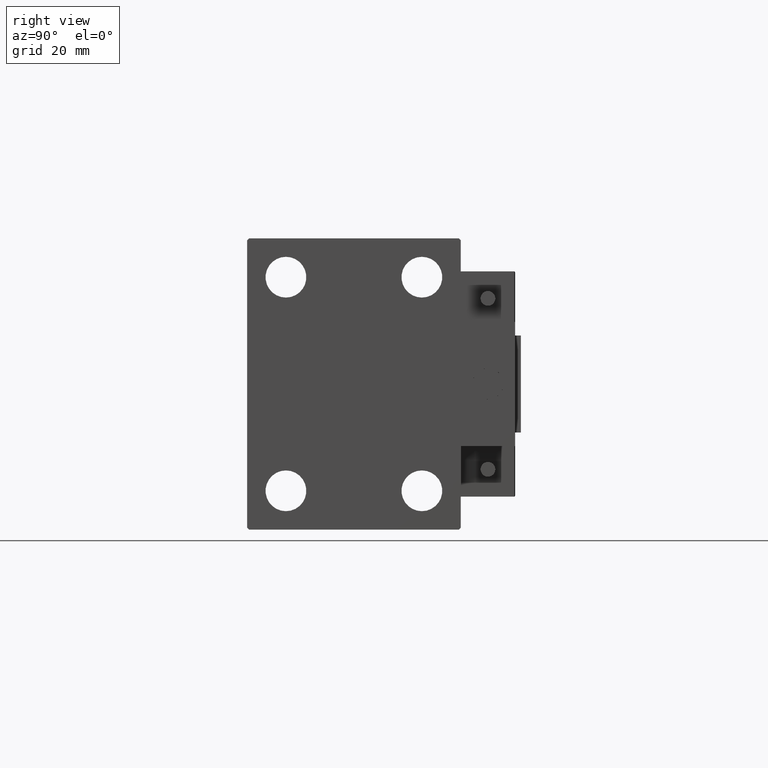
[diagram: clean part render]
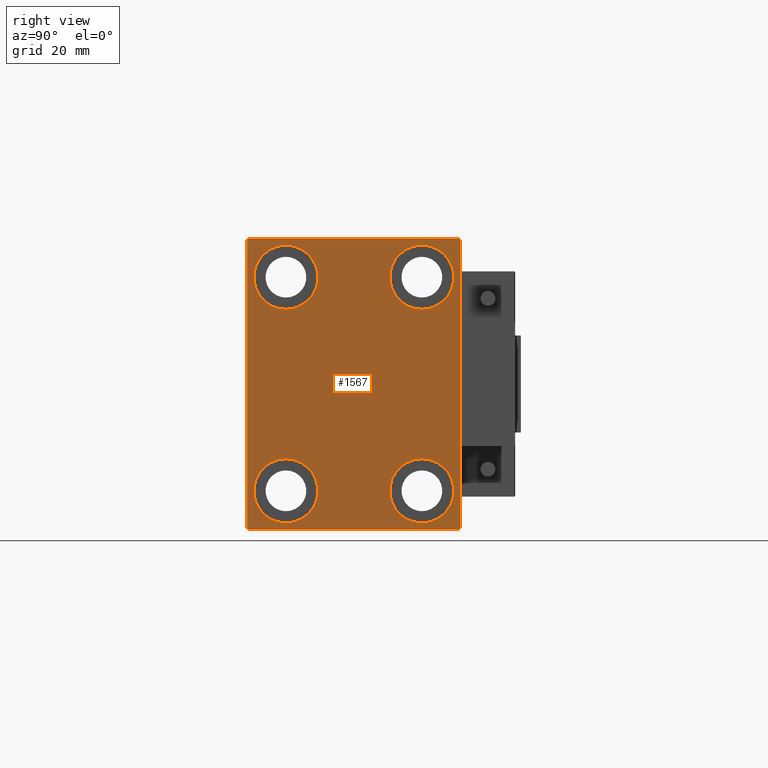
[diagram: same view with one face highlighted and labeled with its STEP entity id]
A machine part, right view. The second image highlights one B-rep face of the part: STEP entity #1567.
In plain terms, the highlighted planar face has unit normal (1, 0, 0).
Its self-contained STEP definition (entity closure, byte-faithful):
#19 = LINE ( 'NONE', #38722, #2837 ) ;
#499 = FACE_OUTER_BOUND ( 'NONE', #27328, .T. ) ;
#1173 = ORIENTED_EDGE ( 'NONE', *, *, #49385, .T. ) ;
#1546 = CARTESIAN_POINT ( 'NONE',  ( 80.00000000000000000, -27.00000000000001776, 37.50000000000000000 ) ) ;
#1567 = ADVANCED_FACE ( 'NONE', ( #27239, #7868, #11957, #46578, #499 ), #15533, .T. ) ;
#1791 = DIRECTION ( 'NONE',  ( -1.000000000000000000, -0.000000000000000000, -0.000000000000000000 ) ) ;
#1799 = LINE ( 'NONE', #40244, #48551 ) ;
#2435 = CARTESIAN_POINT ( 'NONE',  ( 80.00000000000000000, -17.50000000000000355, -19.25000000000000355 ) ) ;
#2484 = ORIENTED_EDGE ( 'NONE', *, *, #25147, .T. ) ;
#2837 = VECTOR ( 'NONE', #18627, 1000.000000000000114 ) ;
#2992 = VERTEX_POINT ( 'NONE', #23131 ) ;
#3217 = CARTESIAN_POINT ( 'NONE',  ( 80.00000000000000000, -27.50000000000000355, -37.50000000000000000 ) ) ;
#4027 = DIRECTION ( 'NONE',  ( 0.000000000000000000, 0.000000000000000000, 1.000000000000000000 ) ) ;
#4166 = CIRCLE ( 'NONE', #42373, 8.249999999999992895 ) ;
#5247 = VERTEX_POINT ( 'NONE', #39080 ) ;
#5468 = LINE ( 'NONE', #44436, #15142 ) ;
#5754 = DIRECTION ( 'NONE',  ( -0.000000000000000000, 0.7071067811865474617, -0.7071067811865474617 ) ) ;
#5809 = ORIENTED_EDGE ( 'NONE', *, *, #32079, .T. ) ;
#6461 = DIRECTION ( 'NONE',  ( 0.000000000000000000, 0.000000000000000000, 1.000000000000000000 ) ) ;
#7298 = ORIENTED_EDGE ( 'NONE', *, *, #23054, .T. ) ;
#7519 = ORIENTED_EDGE ( 'NONE', *, *, #17400, .T. ) ;
#7868 = FACE_BOUND ( 'NONE', #33453, .T. ) ;
#8366 = CARTESIAN_POINT ( 'NONE',  ( 80.00000000000000000, -17.49999999999999645, 27.49999999999999645 ) ) ;
#9028 = ORIENTED_EDGE ( 'NONE', *, *, #44832, .T. ) ;
#9425 = DIRECTION ( 'NONE',  ( 0.000000000000000000, 0.000000000000000000, -1.000000000000000000 ) ) ;
#9546 = DIRECTION ( 'NONE',  ( -0.000000000000000000, -0.7071067811865426878, 0.7071067811865524577 ) ) ;
#9614 = EDGE_CURVE ( 'NONE', #49757, #25144, #19, .T. ) ;
#9733 = DIRECTION ( 'NONE',  ( 0.000000000000000000, 0.000000000000000000, 1.000000000000000000 ) ) ;
#9812 = CARTESIAN_POINT ( 'NONE',  ( 80.00000000000000000, 27.50000000000000355, -37.00000000000000000 ) ) ;
#10056 = DIRECTION ( 'NONE',  ( 0.000000000000000000, -0.7071067811865474617, -0.7071067811865474617 ) ) ;
#10070 = CIRCLE ( 'NONE', #38547, 8.249999999999992895 ) ;
#11038 = CARTESIAN_POINT ( 'NONE',  ( 80.00000000000000000, 17.49999999999999645, -27.50000000000000355 ) ) ;
#11422 = EDGE_LOOP ( 'NONE', ( #26274, #44613 ) ) ;
#11957 = FACE_BOUND ( 'NONE', #30612, .T. ) ;
#12583 = DIRECTION ( 'NONE',  ( -1.000000000000000000, -0.000000000000000000, -0.000000000000000000 ) ) ;
#13087 = ORIENTED_EDGE ( 'NONE', *, *, #16233, .T. ) ;
#13097 = CARTESIAN_POINT ( 'NONE',  ( 80.00000000000000000, -17.49999999999999645, 19.25000000000000000 ) ) ;
#13170 = LINE ( 'NONE', #28220, #37859 ) ;
#13731 = AXIS2_PLACEMENT_3D ( 'NONE', #36913, #1791, #13749 ) ;
#13749 = DIRECTION ( 'NONE',  ( 0.000000000000000000, 0.000000000000000000, 1.000000000000000000 ) ) ;
#15142 = VECTOR ( 'NONE', #9546, 1000.000000000000000 ) ;
#15348 = CARTESIAN_POINT ( 'NONE',  ( 80.00000000000000000, -27.50000000000000355, 37.00000000000001421 ) ) ;
#15533 = PLANE ( 'NONE',  #49788 ) ;
#15707 = CARTESIAN_POINT ( 'NONE',  ( 80.00000000000000000, -17.50000000000000355, -27.50000000000000355 ) ) ;
#15773 = CARTESIAN_POINT ( 'NONE',  ( 80.00000000000000000, 17.49999999999999645, -35.75000000000000711 ) ) ;
#16233 = EDGE_CURVE ( 'NONE', #33075, #29310, #4166, .T. ) ;
#17400 = EDGE_CURVE ( 'NONE', #35487, #49757, #50041, .T. ) ;
#17514 = CIRCLE ( 'NONE', #29687, 8.250000000000000000 ) ;
#18048 = CARTESIAN_POINT ( 'NONE',  ( 80.00000000000000000, 17.50000000000000355, 19.25000000000000000 ) ) ;
#18627 = DIRECTION ( 'NONE',  ( -0.000000000000000000, 0.7071067811865474617, 0.7071067811865474617 ) ) ;
#19407 = CARTESIAN_POINT ( 'NONE',  ( 80.00000000000000000, -27.50000000000000355, -36.99999999999998579 ) ) ;
#20038 = ORIENTED_EDGE ( 'NONE', *, *, #20784, .T. ) ;
#20219 = DIRECTION ( 'NONE',  ( -1.000000000000000000, -0.000000000000000000, -0.000000000000000000 ) ) ;
#20784 = EDGE_CURVE ( 'NONE', #31584, #35487, #28948, .T. ) ;
#21001 = ORIENTED_EDGE ( 'NONE', *, *, #35441, .T. ) ;
#21054 = CARTESIAN_POINT ( 'NONE',  ( 80.00000000000000000, 27.50000000000000355, -37.50000000000000000 ) ) ;
#22122 = CARTESIAN_POINT ( 'NONE',  ( 80.00000000000000000, 17.49999999999999645, -19.25000000000000355 ) ) ;
#23054 = EDGE_CURVE ( 'NONE', #40955, #5247, #32026, .T. ) ;
#23106 = EDGE_CURVE ( 'NONE', #5247, #40955, #10070, .T. ) ;
#23131 = CARTESIAN_POINT ( 'NONE',  ( 80.00000000000000000, -17.50000000000000355, -35.75000000000000711 ) ) ;
#23167 = AXIS2_PLACEMENT_3D ( 'NONE', #31530, #35829, #4027 ) ;
#23300 = CARTESIAN_POINT ( 'NONE',  ( 80.00000000000000000, 17.50000000000000355, 27.49999999999999645 ) ) ;
#23420 = CARTESIAN_POINT ( 'NONE',  ( 80.00000000000000000, 27.00000000000001066, 37.50000000000000711 ) ) ;
#23592 = ORIENTED_EDGE ( 'NONE', *, *, #23106, .T. ) ;
#24298 = LINE ( 'NONE', #49127, #41219 ) ;
#25086 = VERTEX_POINT ( 'NONE', #2435 ) ;
#25141 = CARTESIAN_POINT ( 'NONE',  ( 80.00000000000000000, -32.24999999999999289, -32.24999999999999289 ) ) ;
#25144 = VERTEX_POINT ( 'NONE', #9812 ) ;
#25147 = EDGE_CURVE ( 'NONE', #25144, #27232, #25367, .T. ) ;
#25367 = LINE ( 'NONE', #21054, #36022 ) ;
#25462 = VECTOR ( 'NONE', #5754, 1000.000000000000114 ) ;
#25610 = AXIS2_PLACEMENT_3D ( 'NONE', #11038, #26086, #6461 ) ;
#26086 = DIRECTION ( 'NONE',  ( -1.000000000000000000, -0.000000000000000000, -0.000000000000000000 ) ) ;
#26274 = ORIENTED_EDGE ( 'NONE', *, *, #30198, .T. ) ;
#27232 = VERTEX_POINT ( 'NONE', #35889 ) ;
#27239 = FACE_BOUND ( 'NONE', #11422, .T. ) ;
#27328 = EDGE_LOOP ( 'NONE', ( #45091, #33835, #21001, #20038, #7519, #41656, #2484, #5809 ) ) ;
#27983 = DIRECTION ( 'NONE',  ( 0.000000000000000000, 0.000000000000000000, 1.000000000000000000 ) ) ;
#28191 = CIRCLE ( 'NONE', #46070, 8.250000000000000000 ) ;
#28220 = CARTESIAN_POINT ( 'NONE',  ( 80.00000000000000000, -32.25000000000000711, 32.25000000000000711 ) ) ;
#28334 = CARTESIAN_POINT ( 'NONE',  ( 80.00000000000000000, 17.50000000000000355, 27.49999999999999645 ) ) ;
#28948 = LINE ( 'NONE', #25141, #25462 ) ;
#29134 = DIRECTION ( 'NONE',  ( 0.000000000000000000, 0.000000000000000000, 1.000000000000000000 ) ) ;
#29310 = VERTEX_POINT ( 'NONE', #43991 ) ;
#29687 = AXIS2_PLACEMENT_3D ( 'NONE', #15707, #43193, #46752 ) ;
#30198 = EDGE_CURVE ( 'NONE', #34790, #37399, #39446, .T. ) ;
#30612 = EDGE_LOOP ( 'NONE', ( #7298, #23592 ) ) ;
#31438 = ORIENTED_EDGE ( 'NONE', *, *, #46105, .T. ) ;
#31530 = CARTESIAN_POINT ( 'NONE',  ( 80.00000000000000000, -17.49999999999999645, 27.49999999999999645 ) ) ;
#31584 = VERTEX_POINT ( 'NONE', #19407 ) ;
#32026 = CIRCLE ( 'NONE', #46640, 8.249999999999992895 ) ;
#32079 = EDGE_CURVE ( 'NONE', #27232, #45753, #5468, .T. ) ;
#32906 = DIRECTION ( 'NONE',  ( -1.000000000000000000, -0.000000000000000000, -0.000000000000000000 ) ) ;
#33075 = VERTEX_POINT ( 'NONE', #13097 ) ;
#33453 = EDGE_LOOP ( 'NONE', ( #13087, #9028 ) ) ;
#33835 = ORIENTED_EDGE ( 'NONE', *, *, #47248, .T. ) ;
#34486 = CARTESIAN_POINT ( 'NONE',  ( 80.00000000000000000, 27.00000000000000355, -37.50000000000000000 ) ) ;
#34539 = VERTEX_POINT ( 'NONE', #1546 ) ;
#34790 = VERTEX_POINT ( 'NONE', #15773 ) ;
#35388 = EDGE_LOOP ( 'NONE', ( #1173, #31438 ) ) ;
#35441 = EDGE_CURVE ( 'NONE', #47471, #31584, #1799, .T. ) ;
#35487 = VERTEX_POINT ( 'NONE', #39988 ) ;
#35630 = DIRECTION ( 'NONE',  ( -1.000000000000000000, -0.000000000000000000, -0.000000000000000000 ) ) ;
#35687 = CIRCLE ( 'NONE', #13731, 8.250000000000000000 ) ;
#35829 = DIRECTION ( 'NONE',  ( -1.000000000000000000, -0.000000000000000000, -0.000000000000000000 ) ) ;
#35889 = CARTESIAN_POINT ( 'NONE',  ( 80.00000000000000000, 27.49999999999999645, 37.00000000000001421 ) ) ;
#36022 = VECTOR ( 'NONE', #48258, 1000.000000000000000 ) ;
#36913 = CARTESIAN_POINT ( 'NONE',  ( 80.00000000000000000, 17.49999999999999645, -27.50000000000000355 ) ) ;
#37399 = VERTEX_POINT ( 'NONE', #22122 ) ;
#37859 = VECTOR ( 'NONE', #10056, 1000.000000000000114 ) ;
#38516 = EDGE_CURVE ( 'NONE', #45753, #34539, #24298, .T. ) ;
#38547 = AXIS2_PLACEMENT_3D ( 'NONE', #28334, #32906, #9733 ) ;
#38722 = CARTESIAN_POINT ( 'NONE',  ( 80.00000000000000000, 32.25000000000000000, -32.25000000000000000 ) ) ;
#38809 = DIRECTION ( 'NONE',  ( 0.000000000000000000, 0.000000000000000000, 1.000000000000000000 ) ) ;
#39080 = CARTESIAN_POINT ( 'NONE',  ( 80.00000000000000000, 17.50000000000000355, 35.74999999999999289 ) ) ;
#39446 = CIRCLE ( 'NONE', #25610, 8.250000000000000000 ) ;
#39949 = VECTOR ( 'NONE', #45724, 1000.000000000000000 ) ;
#39988 = CARTESIAN_POINT ( 'NONE',  ( 80.00000000000000000, -26.99999999999998934, -37.50000000000000000 ) ) ;
#40244 = CARTESIAN_POINT ( 'NONE',  ( 80.00000000000000000, -27.50000000000000355, 37.50000000000000000 ) ) ;
#40955 = VERTEX_POINT ( 'NONE', #18048 ) ;
#41219 = VECTOR ( 'NONE', #45323, 1000.000000000000000 ) ;
#41656 = ORIENTED_EDGE ( 'NONE', *, *, #9614, .T. ) ;
#42266 = CARTESIAN_POINT ( 'NONE',  ( 80.00000000000000000, 0.000000000000000000, 0.000000000000000000 ) ) ;
#42373 = AXIS2_PLACEMENT_3D ( 'NONE', #8366, #35630, #27983 ) ;
#42834 = EDGE_CURVE ( 'NONE', #37399, #34790, #35687, .T. ) ;
#43193 = DIRECTION ( 'NONE',  ( -1.000000000000000000, -0.000000000000000000, -0.000000000000000000 ) ) ;
#43991 = CARTESIAN_POINT ( 'NONE',  ( 80.00000000000000000, -17.49999999999999645, 35.74999999999999289 ) ) ;
#44436 = CARTESIAN_POINT ( 'NONE',  ( 80.00000000000000000, 32.25000000000019185, 32.24999999999975131 ) ) ;
#44613 = ORIENTED_EDGE ( 'NONE', *, *, #42834, .T. ) ;
#44832 = EDGE_CURVE ( 'NONE', #29310, #33075, #47619, .T. ) ;
#45091 = ORIENTED_EDGE ( 'NONE', *, *, #38516, .T. ) ;
#45323 = DIRECTION ( 'NONE',  ( 0.000000000000000000, -1.000000000000000000, -1.261617073437677999E-16 ) ) ;
#45724 = DIRECTION ( 'NONE',  ( 0.000000000000000000, 1.000000000000000000, 0.000000000000000000 ) ) ;
#45753 = VERTEX_POINT ( 'NONE', #23420 ) ;
#46070 = AXIS2_PLACEMENT_3D ( 'NONE', #47963, #12583, #29134 ) ;
#46105 = EDGE_CURVE ( 'NONE', #25086, #2992, #17514, .T. ) ;
#46331 = DIRECTION ( 'NONE',  ( 0.000000000000000000, 0.000000000000000000, -1.000000000000000000 ) ) ;
#46578 = FACE_BOUND ( 'NONE', #35388, .T. ) ;
#46640 = AXIS2_PLACEMENT_3D ( 'NONE', #23300, #20219, #38809 ) ;
#46752 = DIRECTION ( 'NONE',  ( 0.000000000000000000, 0.000000000000000000, 1.000000000000000000 ) ) ;
#47248 = EDGE_CURVE ( 'NONE', #34539, #47471, #13170, .T. ) ;
#47471 = VERTEX_POINT ( 'NONE', #15348 ) ;
#47619 = CIRCLE ( 'NONE', #23167, 8.249999999999992895 ) ;
#47963 = CARTESIAN_POINT ( 'NONE',  ( 80.00000000000000000, -17.50000000000000355, -27.50000000000000355 ) ) ;
#48258 = DIRECTION ( 'NONE',  ( 0.000000000000000000, -9.251858538542970348E-17, 1.000000000000000000 ) ) ;
#48551 = VECTOR ( 'NONE', #9425, 1000.000000000000000 ) ;
#49127 = CARTESIAN_POINT ( 'NONE',  ( 80.00000000000000000, 27.49999999999999645, 37.50000000000000711 ) ) ;
#49385 = EDGE_CURVE ( 'NONE', #2992, #25086, #28191, .T. ) ;
#49757 = VERTEX_POINT ( 'NONE', #34486 ) ;
#49788 = AXIS2_PLACEMENT_3D ( 'NONE', #42266, #49877, #46331 ) ;
#49877 = DIRECTION ( 'NONE',  ( 1.000000000000000000, 0.000000000000000000, 0.000000000000000000 ) ) ;
#50041 = LINE ( 'NONE', #3217, #39949 ) ;